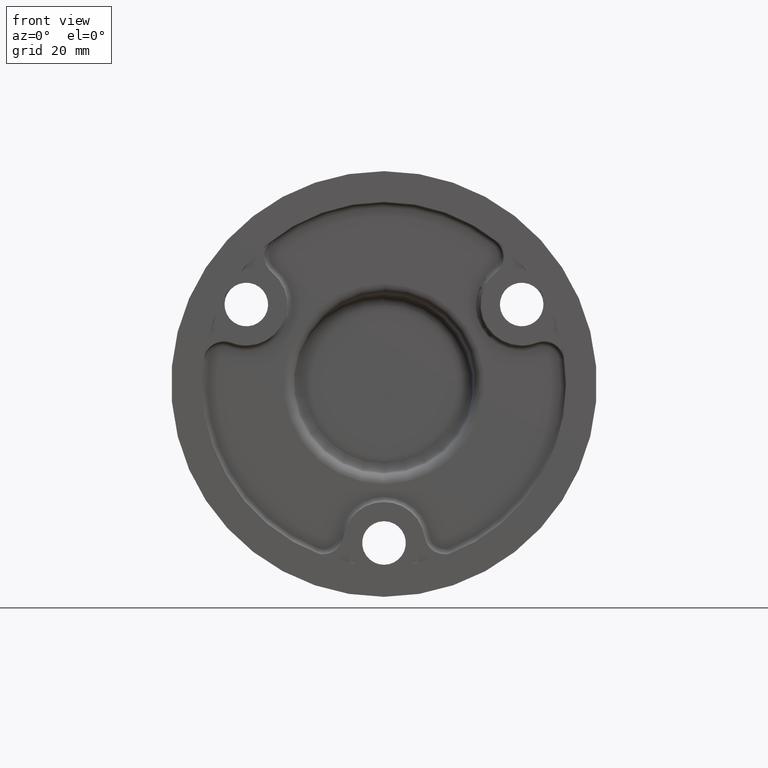
[diagram: clean part render]
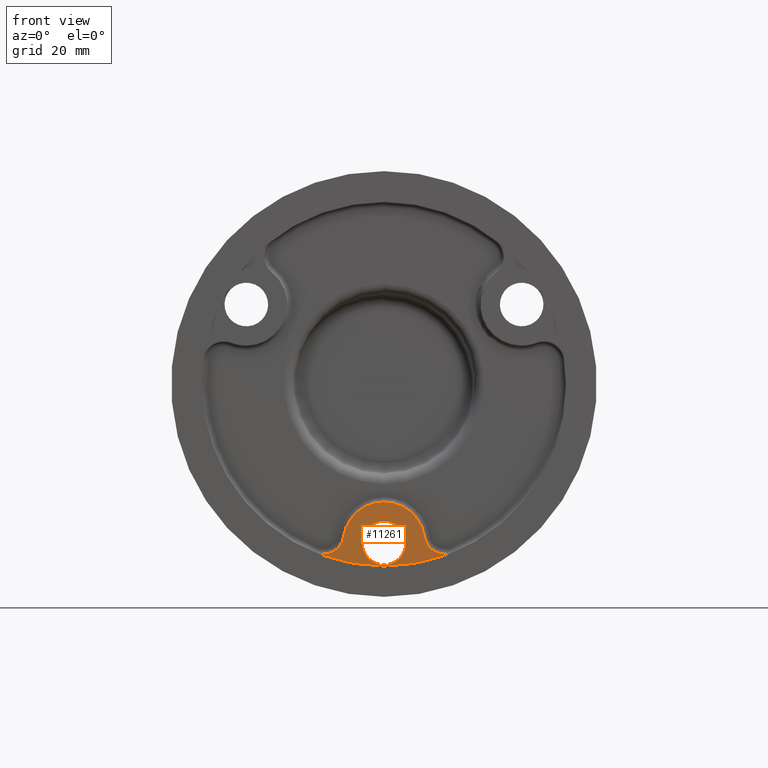
[diagram: same view with one face highlighted and labeled with its STEP entity id]
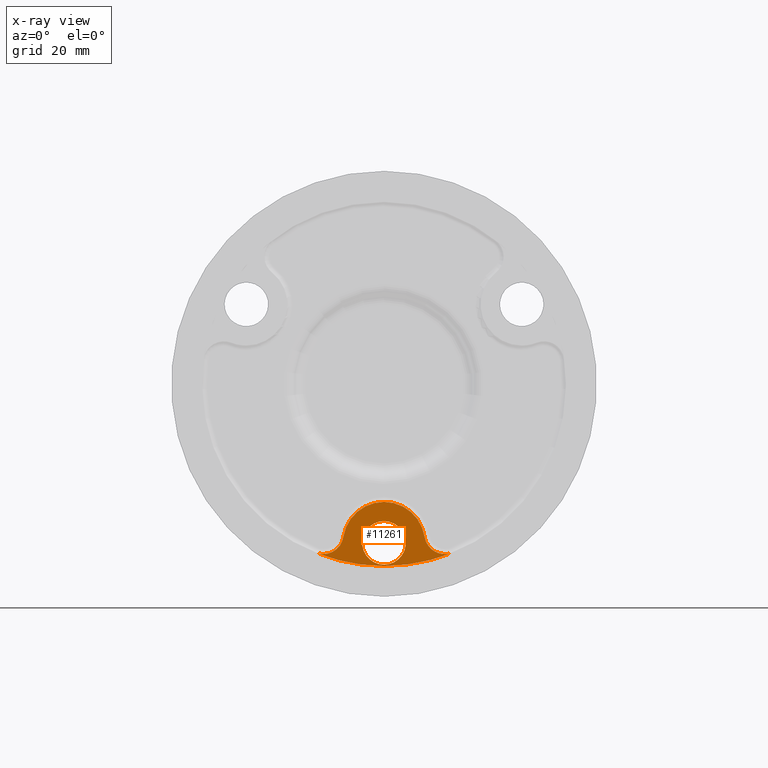
[diagram: x-ray of the same camera — body ghosted, the highlighted face saturated]
A machine part, front view. The second image highlights one B-rep face of the part: STEP entity #11261.
The next image is the same camera in x-ray: the body ghosted, the highlighted face saturated — about 0% of this face is hidden behind the body in this view.
In plain terms, the highlighted planar face has unit normal (0, -1, 0).
Its self-contained STEP definition (entity closure, byte-faithful):
#542 = CIRCLE ( 'NONE', #8642, 4.249999999999996447 ) ;
#800 = AXIS2_PLACEMENT_3D ( 'NONE', #8049, #11318, #987 ) ;
#987 = DIRECTION ( 'NONE',  ( 0.000000000000000000, 0.000000000000000000, -1.000000000000000000 ) ) ;
#1232 = AXIS2_PLACEMENT_3D ( 'NONE', #18014, #7556, #19748 ) ;
#1489 = DIRECTION ( 'NONE',  ( 0.000000000000000000, 0.000000000000000000, -1.000000000000000000 ) ) ;
#1700 = DIRECTION ( 'NONE',  ( 8.673617379884043361E-16, 0.000000000000000000, -1.000000000000000000 ) ) ;
#1724 = DIRECTION ( 'NONE',  ( -0.000000000000000000, 1.000000000000000000, -0.000000000000000000 ) ) ;
#1990 = DIRECTION ( 'NONE',  ( 0.000000000000000000, -0.000000000000000000, -1.000000000000000000 ) ) ;
#1999 = AXIS2_PLACEMENT_3D ( 'NONE', #20841, #1724, #1489 ) ;
#2201 = VERTEX_POINT ( 'NONE', #20185 ) ;
#2770 = VERTEX_POINT ( 'NONE', #20954 ) ;
#3429 = ORIENTED_EDGE ( 'NONE', *, *, #8832, .T. ) ;
#3592 = ORIENTED_EDGE ( 'NONE', *, *, #20320, .T. ) ;
#3602 = CARTESIAN_POINT ( 'NONE',  ( 0.000000000000000000, 0.5000000000000004441, -31.00000000000000000 ) ) ;
#4531 = DIRECTION ( 'NONE',  ( 0.000000000000000000, -1.000000000000000000, 0.000000000000000000 ) ) ;
#4727 = CARTESIAN_POINT ( 'NONE',  ( 5.204748896376250699E-16, 0.5000000000000004441, -35.25000000000000000 ) ) ;
#4841 = CARTESIAN_POINT ( 'NONE',  ( 13.36761293494643610, 0.5000000000000000000, -32.88703277009729220 ) ) ;
#4851 = CARTESIAN_POINT ( 'NONE',  ( -11.86140302678345293, 0.5000000000000000000, -29.18145161290322420 ) ) ;
#5051 = DIRECTION ( 'NONE',  ( 0.000000000000000000, 0.000000000000000000, -1.000000000000000000 ) ) ;
#5179 = CARTESIAN_POINT ( 'NONE',  ( 11.86140302678345293, 0.5000000000000000000, -29.18145161290322420 ) ) ;
#5322 = DIRECTION ( 'NONE',  ( 0.000000000000000000, -1.000000000000000000, 0.000000000000000000 ) ) ;
#5385 = EDGE_CURVE ( 'NONE', #6911, #13072, #542, .T. ) ;
#5393 = DIRECTION ( 'NONE',  ( -0.000000000000000000, 1.000000000000000000, -0.000000000000000000 ) ) ;
#6052 = ORIENTED_EDGE ( 'NONE', *, *, #16929, .T. ) ;
#6149 = CIRCLE ( 'NONE', #8297, 3.999999999999996447 ) ;
#6911 = VERTEX_POINT ( 'NONE', #13888 ) ;
#6932 = DIRECTION ( 'NONE',  ( -0.000000000000000000, 1.000000000000000000, -0.000000000000000000 ) ) ;
#6933 = ORIENTED_EDGE ( 'NONE', *, *, #11483, .T. ) ;
#7129 = DIRECTION ( 'NONE',  ( 0.000000000000000000, 0.000000000000000000, -1.000000000000000000 ) ) ;
#7556 = DIRECTION ( 'NONE',  ( 0.000000000000000000, -1.000000000000000000, 0.000000000000000000 ) ) ;
#8049 = CARTESIAN_POINT ( 'NONE',  ( 11.86140302678345293, 0.5000000000000000000, -29.18145161290322420 ) ) ;
#8094 = CARTESIAN_POINT ( 'NONE',  ( 0.000000000000000000, 0.5000000000000000000, 0.000000000000000000 ) ) ;
#8112 = CIRCLE ( 'NONE', #19673, 35.50000000000001421 ) ;
#8221 = VERTEX_POINT ( 'NONE', #10779 ) ;
#8297 = AXIS2_PLACEMENT_3D ( 'NONE', #5179, #6932, #1700 ) ;
#8466 = DIRECTION ( 'NONE',  ( 0.000000000000000000, -1.000000000000000000, 0.000000000000000000 ) ) ;
#8642 = AXIS2_PLACEMENT_3D ( 'NONE', #19380, #8916, #21159 ) ;
#8832 = EDGE_CURVE ( 'NONE', #2770, #15065, #10541, .T. ) ;
#8916 = DIRECTION ( 'NONE',  ( -0.000000000000000000, 1.000000000000000000, -0.000000000000000000 ) ) ;
#9052 = AXIS2_PLACEMENT_3D ( 'NONE', #8094, #8466, #5051 ) ;
#9715 = EDGE_CURVE ( 'NONE', #13072, #6911, #14991, .T. ) ;
#10541 = CIRCLE ( 'NONE', #15299, 4.000000000000003553 ) ;
#10595 = EDGE_CURVE ( 'NONE', #21960, #18736, #8112, .T. ) ;
#10779 = CARTESIAN_POINT ( 'NONE',  ( 7.907602017855638543, 0.5000000000000000000, -29.78763440860215539 ) ) ;
#10846 = EDGE_CURVE ( 'NONE', #8221, #2770, #22318, .T. ) ;
#11052 = AXIS2_PLACEMENT_3D ( 'NONE', #12471, #5322, #1990 ) ;
#11261 = ADVANCED_FACE ( 'NONE', ( #17935, #13296 ), #16003, .T. ) ;
#11318 = DIRECTION ( 'NONE',  ( -0.000000000000000000, 1.000000000000000000, -0.000000000000000000 ) ) ;
#11483 = EDGE_CURVE ( 'NONE', #2201, #8221, #17100, .T. ) ;
#11702 = EDGE_LOOP ( 'NONE', ( #17950, #15328 ) ) ;
#12471 = CARTESIAN_POINT ( 'NONE',  ( 0.000000000000000000, 0.5000000000000000000, 0.000000000000000000 ) ) ;
#12868 = EDGE_CURVE ( 'NONE', #18736, #2201, #6149, .T. ) ;
#13072 = VERTEX_POINT ( 'NONE', #4727 ) ;
#13296 = FACE_BOUND ( 'NONE', #11702, .T. ) ;
#13427 = CARTESIAN_POINT ( 'NONE',  ( 0.000000000000000000, 0.5000000000000000000, -35.50000000000001421 ) ) ;
#13866 = AXIS2_PLACEMENT_3D ( 'NONE', #3602, #5393, #7129 ) ;
#13888 = CARTESIAN_POINT ( 'NONE',  ( 0.000000000000000000, 0.5000000000000004441, -26.75000000000000355 ) ) ;
#14083 = CARTESIAN_POINT ( 'NONE',  ( -11.86140302678345293, 0.5000000000000000000, -33.18145161290323131 ) ) ;
#14404 = ORIENTED_EDGE ( 'NONE', *, *, #12868, .T. ) ;
#14991 = CIRCLE ( 'NONE', #13866, 4.249999999999996447 ) ;
#15065 = VERTEX_POINT ( 'NONE', #14083 ) ;
#15299 = AXIS2_PLACEMENT_3D ( 'NONE', #4851, #18750, #15329 ) ;
#15328 = ORIENTED_EDGE ( 'NONE', *, *, #9715, .T. ) ;
#15329 = DIRECTION ( 'NONE',  ( 8.673617379884027583E-16, 0.000000000000000000, -1.000000000000000000 ) ) ;
#15479 = ORIENTED_EDGE ( 'NONE', *, *, #10595, .T. ) ;
#16003 = PLANE ( 'NONE',  #11052 ) ;
#16929 = EDGE_CURVE ( 'NONE', #15065, #19578, #20297, .T. ) ;
#17100 = CIRCLE ( 'NONE', #800, 3.999999999999996447 ) ;
#17935 = FACE_OUTER_BOUND ( 'NONE', #18113, .T. ) ;
#17950 = ORIENTED_EDGE ( 'NONE', *, *, #5385, .T. ) ;
#17959 = CIRCLE ( 'NONE', #9052, 35.50000000000001421 ) ;
#18014 = CARTESIAN_POINT ( 'NONE',  ( 0.000000000000000000, 0.5000000000000000000, -31.00000000000000000 ) ) ;
#18113 = EDGE_LOOP ( 'NONE', ( #3429, #6052, #3592, #15479, #14404, #6933, #21223 ) ) ;
#18272 = CARTESIAN_POINT ( 'NONE',  ( 0.000000000000000000, 0.5000000000000000000, 0.000000000000000000 ) ) ;
#18495 = DIRECTION ( 'NONE',  ( 0.000000000000000000, 0.000000000000000000, -1.000000000000000000 ) ) ;
#18736 = VERTEX_POINT ( 'NONE', #4841 ) ;
#18750 = DIRECTION ( 'NONE',  ( -0.000000000000000000, 1.000000000000000000, -0.000000000000000000 ) ) ;
#18913 = CARTESIAN_POINT ( 'NONE',  ( -13.36761293494644320, 0.5000000000000000000, -32.88703277009729220 ) ) ;
#19380 = CARTESIAN_POINT ( 'NONE',  ( 0.000000000000000000, 0.5000000000000004441, -31.00000000000000000 ) ) ;
#19578 = VERTEX_POINT ( 'NONE', #18913 ) ;
#19673 = AXIS2_PLACEMENT_3D ( 'NONE', #18272, #4531, #18495 ) ;
#19748 = DIRECTION ( 'NONE',  ( 0.000000000000000000, 0.000000000000000000, -1.000000000000000000 ) ) ;
#20185 = CARTESIAN_POINT ( 'NONE',  ( 11.86140302678345293, 0.5000000000000000000, -33.18145161290322420 ) ) ;
#20297 = CIRCLE ( 'NONE', #1999, 4.000000000000003553 ) ;
#20320 = EDGE_CURVE ( 'NONE', #19578, #21960, #17959, .T. ) ;
#20841 = CARTESIAN_POINT ( 'NONE',  ( -11.86140302678345293, 0.5000000000000000000, -29.18145161290322420 ) ) ;
#20954 = CARTESIAN_POINT ( 'NONE',  ( -7.907602017855638543, 0.5000000000000000000, -29.78763440860215539 ) ) ;
#21159 = DIRECTION ( 'NONE',  ( 0.000000000000000000, 0.000000000000000000, -1.000000000000000000 ) ) ;
#21223 = ORIENTED_EDGE ( 'NONE', *, *, #10846, .T. ) ;
#21960 = VERTEX_POINT ( 'NONE', #13427 ) ;
#22318 = CIRCLE ( 'NONE', #1232, 8.000000000000000000 ) ;